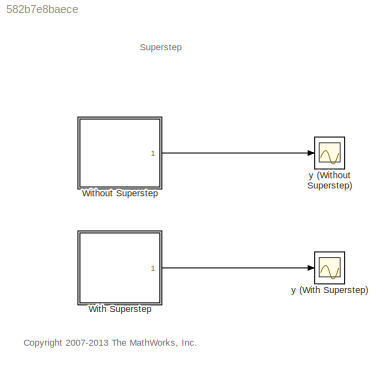
MODEL slx_582b7e8baece
KIND model
CONFIG AbsTol = auto
CONFIG EnableMultiTasking = on
CONFIG FixedStep = 1
CONFIG MaxStep = auto
CONFIG MinStep = auto
CONFIG RelTol = 1e-3
CONFIG SampleTimeConstraint = Unconstrained
CONFIG Solver = FixedStepDiscrete
CONFIG SolverName = FixedStepDiscrete
CONFIG StartTime = 0.0
CONFIG StopTime = 10.0
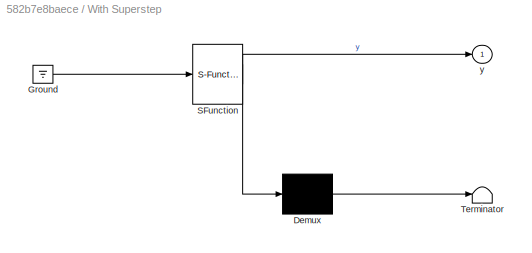
BLOCK [SubSystem] With Superstep
  ErrorFcn = Stateflow.Translate.translate
  PermitHierarchicalResolution = ExplicitOnly
  Ports = [0, 1]
  RequestExecContextInheritance = off
  SFBlockType = Chart
  TreatAsAtomicUnit = on
  Variant = off
BLOCK [Demux] With Superstep/ Demux 
  Outputs = 1
  Ports = [1, 1]
BLOCK [Ground] With Superstep/ Ground 
BLOCK [S-Function] With Superstep/ SFunction 
  EnableBusSupport = off
  FunctionName = sf_sfun
  PortCounts = [1 2]
  Ports = [1, 2]
  SFcnIsStateOwnerBlock = off
  SFunctionDeploymentMode = off
  Tag = Stateflow S-Function sf_superstep 2
BLOCK [Terminator] With Superstep/ Terminator 
BLOCK [Outport] With Superstep/y
  IconDisplay = Port number
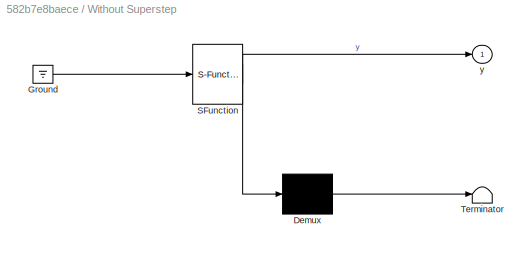
BLOCK [SubSystem] Without Superstep
  ErrorFcn = Stateflow.Translate.translate
  PermitHierarchicalResolution = ExplicitOnly
  Ports = [0, 1]
  RequestExecContextInheritance = off
  SFBlockType = Chart
  TreatAsAtomicUnit = on
  Variant = off
BLOCK [Demux] Without Superstep/ Demux 
  Outputs = 1
  Ports = [1, 1]
BLOCK [Ground] Without Superstep/ Ground 
BLOCK [S-Function] Without Superstep/ SFunction 
  EnableBusSupport = off
  FunctionName = sf_sfun
  PortCounts = [1 2]
  Ports = [1, 2]
  SFcnIsStateOwnerBlock = off
  SFunctionDeploymentMode = off
  Tag = Stateflow S-Function sf_superstep 1
BLOCK [Terminator] Without Superstep/ Terminator 
BLOCK [Outport] Without Superstep/y
  IconDisplay = Port number
BLOCK [Scope] y (With Superstep)
  NumInputPorts = 1
  Ports = [1]
  ScopeSpecificationString = Simulink.scopes.TimeScopeBlockCfg('CurrentConfiguration', extmgr.ConfigurationSet(extmgr.Configuration('Core','General UI',true),extmgr.Configuration('Core','Source UI',true),extmgr.Configuration('Sources','WiredSimulink',true,'DataLoggingVariableName','ScopeData1','DataLoggingLimitDataPoints',true,'DataLoggingDecimation','1','DataLoggingSaveFormat','StructureWithTime'),extmgr.Configuration('Visua...<+924ch>
BLOCK [Scope] y (Without Superstep) 
  NumInputPorts = 1
  Ports = [1]
  ScopeSpecificationString = Simulink.scopes.TimeScopeBlockCfg('CurrentConfiguration', extmgr.ConfigurationSet(extmgr.Configuration('Core','General UI',true),extmgr.Configuration('Core','Source UI',true),extmgr.Configuration('Sources','WiredSimulink',true,'DataLoggingLimitDataPoints',true,'DataLoggingDecimation','1','DataLoggingSaveFormat','StructureWithTime'),extmgr.Configuration('Visuals','Time Domain',true,'DisplayProperty...<+885ch>
ANNOTATION (root): <copyright redacted>
ANNOTATION (root): Superstep
LINE With Superstep:1 -> y (With Superstep):1
LINE Without Superstep:1 -> y (Without Superstep) :1
CHART Without Superstep states=3 transitions=3
  STATE_LABEL 'A\nen: y = 1;'
  STATE_LABEL 'B\nen: y = 2;'
  STATE_LABEL 'C\nen: y = 3;'
CHART With Superstep states=3 transitions=3
  STATE_LABEL 'A\nen: y = 1;'
  STATE_LABEL 'B\nen: y = 2;'
  STATE_LABEL 'C\nen: y = 3;'
